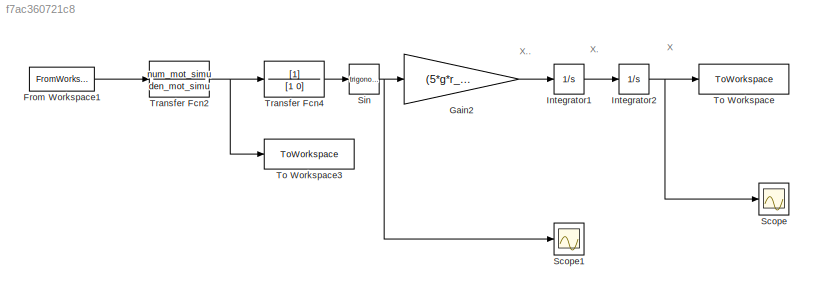
MODEL slx_f7ac360721c8
KIND model
CONFIG AbsTol = auto
CONFIG EnableMultiTasking = off
CONFIG FixedStep = auto
CONFIG MaxStep = auto
CONFIG MinStep = auto
CONFIG RelTol = 1e-3
CONFIG SampleTimeConstraint = Unconstrained
CONFIG SolverName = VariableStepAuto
CONFIG StartTime = 0.0
CONFIG StopTime = 3
BLOCK [FromWorkspace] From Workspace1
  SampleTime = -1
  VariableName = [tsimu,Vm]
BLOCK [Gain] Gain2
  Gain = (5*g*r_arm)/(7*L)
BLOCK [Integrator] Integrator1
BLOCK [Integrator] Integrator2
BLOCK [Scope] Scope
  Floating = off
  NumInputPorts = 1
  ScopeSpecificationString = Simulink.scopes.TimeScopeBlockCfg('CurrentConfiguration', extmgr.ConfigurationSet(extmgr.Configuration('Core','General UI',true),extmgr.Configuration('Core','Source UI',true),extmgr.Configuration('Sources','WiredSimulink',true),extmgr.Configuration('Visuals','Time Domain',true,'SerializedDisplays',{struct('MinYLimReal','-0.03054','MaxYLimReal','0.27485','YLabelReal','','MinYLimMag','0.00000','MaxY...<+1518ch>
BLOCK [Scope] Scope1
  Floating = off
  NumInputPorts = 1
  ScopeSpecificationString = Simulink.scopes.TimeScopeBlockCfg('CurrentConfiguration', extmgr.ConfigurationSet(extmgr.Configuration('Core','General UI',true),extmgr.Configuration('Core','Source UI',true),extmgr.Configuration('Sources','WiredSimulink',true,'DataLoggingVariableName','ScopeData1'),extmgr.Configuration('Visuals','Time Domain',true,'SerializedDisplays',{struct('MinYLimReal','-1.24999','MaxYLimReal','1.24998','YLab...<+1478ch>
BLOCK [Trigonometry] Sin
BLOCK [ToWorkspace] To Workspace
  FixptAsFi = on
  MaxDataPoints = inf
  SampleTime = -1
  SaveFormat = Timeseries
  VariableName = X
BLOCK [ToWorkspace] To Workspace3
  FixptAsFi = on
  MaxDataPoints = inf
  SampleTime = -1
  VariableName = Omega_C
BLOCK [TransferFcn] Transfer Fcn2
  Denominator = den_mot_simu
  Numerator = num_mot_simu
BLOCK [TransferFcn] Transfer Fcn4
  Denominator = [1 0]
ANNOTATION (root): X
ANNOTATION (root): X.
ANNOTATION (root): X..
LINE From Workspace1:1 -> Transfer Fcn2:1
LINE Gain2:1 -> Integrator1:1
LINE Integrator1:1 -> Integrator2:1
NET Integrator2:1 -> Scope:1, To Workspace:1
NET Sin:1 -> Gain2:1, Scope1:1
NET Transfer Fcn2:1 -> To Workspace3:1, Transfer Fcn4:1
LINE Transfer Fcn4:1 -> Sin:1
note: NET lines group one-source signal fan-out (src -> all destinations, sorted); 1:1 wires keep LINE
